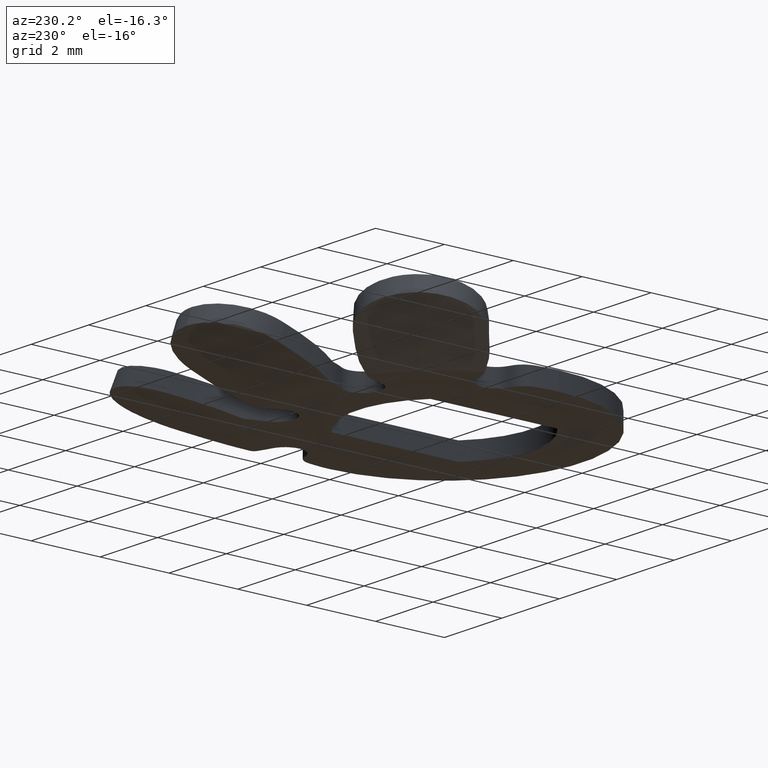
[diagram: clean part render]
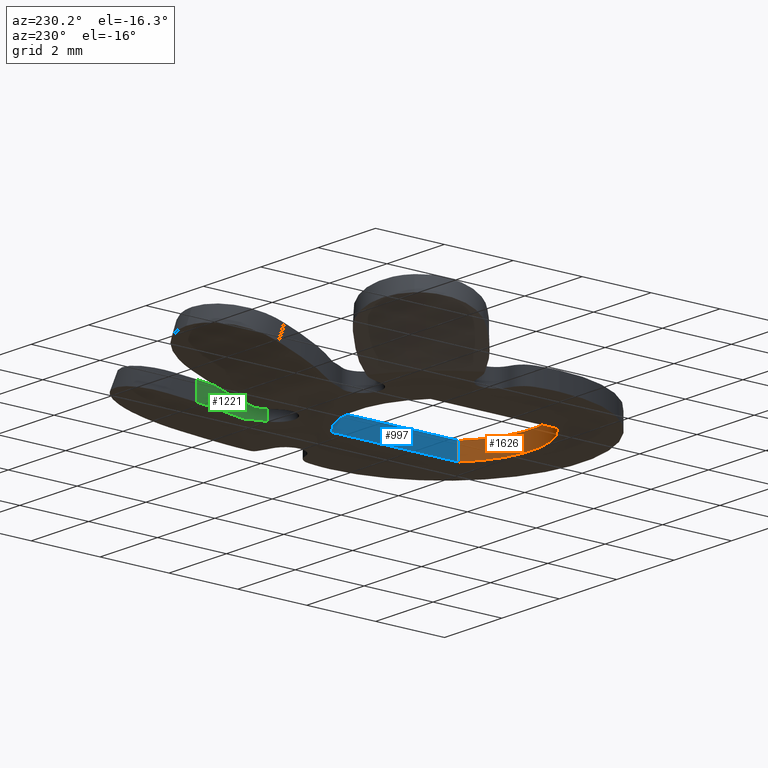
[diagram: same view with three faces highlighted in distinct colors, each labeled with its STEP entity id]
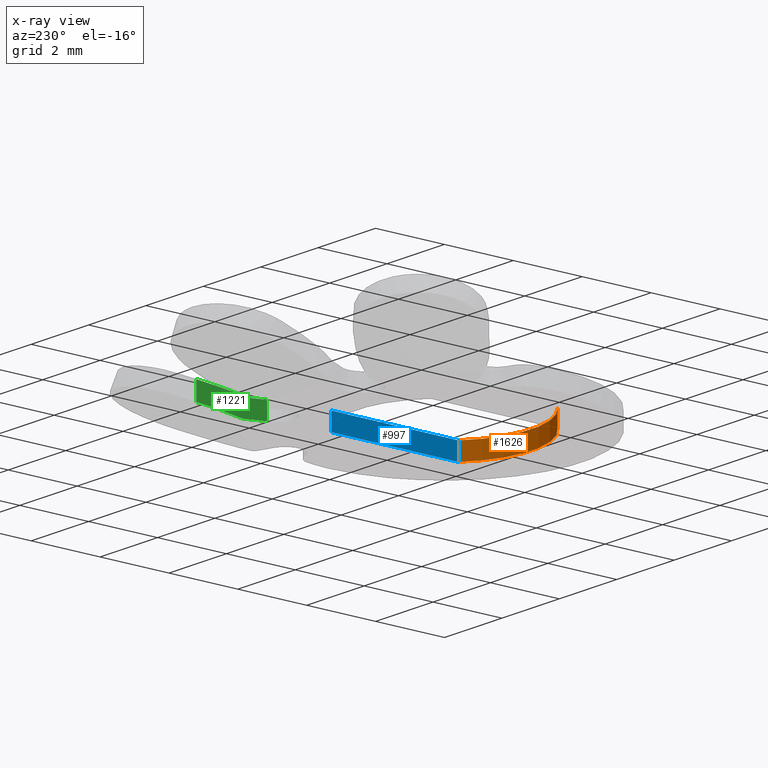
[diagram: x-ray of the same camera — body ghosted, the three highlighted faces saturated]
A machine part, auxiliary view with three faces highlighted in distinct colors.
The next image is the same camera in x-ray (body ghosted, the three faces saturated) — at least one of them is partly hidden behind the body in this view.
Their STEP definitions:

[orange] entity #1626 — the highlighted cylindrical surface (partial cylindrical patch) has radius 2.525 mm, axis along (0, 0, -1).
#63 = DIRECTION ( 'NONE',  ( -1.000000000000000000, 0.0000000000000000000, 0.0000000000000000000 ) ) ;
#119 = DIRECTION ( 'NONE',  ( 0.0000000000000000000, 0.0000000000000000000, 1.000000000000000000 ) ) ;
#206 = CARTESIAN_POINT ( 'NONE',  ( -1.725000000000000100, -1.843908891458577300, 0.5000000000000002200 ) ) ;
#223 = VERTEX_POINT ( 'NONE', #244 ) ;
#244 = CARTESIAN_POINT ( 'NONE',  ( -1.725000000000000100, -1.843908891458577300, 0.0000000000000000000 ) ) ;
#299 = CARTESIAN_POINT ( 'NONE',  ( 1.725000000000000300, -1.843908891458576800, 0.0000000000000000000 ) ) ;
#306 = CARTESIAN_POINT ( 'NONE',  ( 1.725000000000000300, -1.843908891458576800, 1.500000000000000000 ) ) ;
#346 = CARTESIAN_POINT ( 'NONE',  ( -5.401456761889874900E-019, 0.0000000000000000000, 0.5000000000000002200 ) ) ;
#369 = LINE ( 'NONE', #1415, #939 ) ;
#496 = DIRECTION ( 'NONE',  ( -1.000000000000000000, 0.0000000000000000000, 0.0000000000000000000 ) ) ;
#544 = CIRCLE ( 'NONE', #1210, 2.524999999999999900 ) ;
#550 = AXIS2_PLACEMENT_3D ( 'NONE', #346, #1282, #496 ) ;
#676 = VERTEX_POINT ( 'NONE', #206 ) ;
#798 = ORIENTED_EDGE ( 'NONE', *, *, #1213, .F. ) ;
#810 = ORIENTED_EDGE ( 'NONE', *, *, #862, .T. ) ;
#852 = VECTOR ( 'NONE', #1261, 1000.000000000000000 ) ;
#858 = CYLINDRICAL_SURFACE ( 'NONE', #1351, 2.524999999999999900 ) ;
#862 = EDGE_CURVE ( 'NONE', #1132, #1377, #1243, .T. ) ;
#914 = CARTESIAN_POINT ( 'NONE',  ( -5.401456761889874900E-019, 0.0000000000000000000, 0.0000000000000000000 ) ) ;
#939 = VECTOR ( 'NONE', #1550, 1000.000000000000000 ) ;
#957 = CARTESIAN_POINT ( 'NONE',  ( 1.725000000000000300, -1.843908891458576800, 0.5000000000000002200 ) ) ;
#962 = ORIENTED_EDGE ( 'NONE', *, *, #1175, .F. ) ;
#999 = CARTESIAN_POINT ( 'NONE',  ( -5.401456761889874900E-019, 0.0000000000000000000, 1.500000000000000000 ) ) ;
#1054 = DIRECTION ( 'NONE',  ( 1.000000000000000000, 0.0000000000000000000, 0.0000000000000000000 ) ) ;
#1099 = ORIENTED_EDGE ( 'NONE', *, *, #1479, .T. ) ;
#1132 = VERTEX_POINT ( 'NONE', #957 ) ;
#1175 = EDGE_CURVE ( 'NONE', #676, #223, #369, .T. ) ;
#1210 = AXIS2_PLACEMENT_3D ( 'NONE', #914, #119, #1054 ) ;
#1213 = EDGE_CURVE ( 'NONE', #223, #1377, #544, .T. ) ;
#1243 = LINE ( 'NONE', #306, #852 ) ;
#1261 = DIRECTION ( 'NONE',  ( 0.0000000000000000000, 0.0000000000000000000, -1.000000000000000000 ) ) ;
#1265 = DIRECTION ( 'NONE',  ( 0.0000000000000000000, 0.0000000000000000000, -1.000000000000000000 ) ) ;
#1282 = DIRECTION ( 'NONE',  ( -0.0000000000000000000, -0.0000000000000000000, 1.000000000000000000 ) ) ;
#1351 = AXIS2_PLACEMENT_3D ( 'NONE', #999, #1265, #63 ) ;
#1377 = VERTEX_POINT ( 'NONE', #299 ) ;
#1415 = CARTESIAN_POINT ( 'NONE',  ( -1.725000000000000100, -1.843908891458577300, 1.500000000000000000 ) ) ;
#1479 = EDGE_CURVE ( 'NONE', #676, #1132, #1620, .T. ) ;
#1545 = EDGE_LOOP ( 'NONE', ( #1099, #810, #798, #962 ) ) ;
#1550 = DIRECTION ( 'NONE',  ( 0.0000000000000000000, 0.0000000000000000000, -1.000000000000000000 ) ) ;
#1602 = FACE_OUTER_BOUND ( 'NONE', #1545, .T. ) ;
#1620 = CIRCLE ( 'NONE', #550, 2.524999999999999900 ) ;
#1626 = ADVANCED_FACE ( 'NONE', ( #1602 ), #858, .F. ) ;

[blue] entity #997 — the highlighted planar face has unit normal (-1, 0, 0).
#1 = CARTESIAN_POINT ( 'NONE',  ( 1.724999999999999900, 1.843908891458577100, 0.5000000000000002200 ) ) ;
#47 = EDGE_CURVE ( 'NONE', #1132, #1046, #947, .T. ) ;
#48 = AXIS2_PLACEMENT_3D ( 'NONE', #196, #547, #1476 ) ;
#51 = EDGE_CURVE ( 'NONE', #1046, #951, #148, .T. ) ;
#131 = ORIENTED_EDGE ( 'NONE', *, *, #47, .T. ) ;
#148 = LINE ( 'NONE', #882, #1537 ) ;
#196 = CARTESIAN_POINT ( 'NONE',  ( 1.725000000000000100, -1.843908891458577300, 1.500000000000000000 ) ) ;
#198 = DIRECTION ( 'NONE',  ( 0.0000000000000000000, 0.0000000000000000000, -1.000000000000000000 ) ) ;
#260 = EDGE_CURVE ( 'NONE', #1377, #951, #1725, .T. ) ;
#275 = CARTESIAN_POINT ( 'NONE',  ( 1.725000000000000100, -1.843908891458577300, 0.0000000000000000000 ) ) ;
#299 = CARTESIAN_POINT ( 'NONE',  ( 1.725000000000000300, -1.843908891458576800, 0.0000000000000000000 ) ) ;
#306 = CARTESIAN_POINT ( 'NONE',  ( 1.725000000000000300, -1.843908891458576800, 1.500000000000000000 ) ) ;
#417 = ORIENTED_EDGE ( 'NONE', *, *, #51, .T. ) ;
#443 = FACE_OUTER_BOUND ( 'NONE', #1078, .T. ) ;
#464 = ORIENTED_EDGE ( 'NONE', *, *, #260, .F. ) ;
#546 = CARTESIAN_POINT ( 'NONE',  ( 1.724999999999999900, 1.843908891458577100, 0.0000000000000000000 ) ) ;
#547 = DIRECTION ( 'NONE',  ( -1.000000000000000000, 0.0000000000000000000, 0.0000000000000000000 ) ) ;
#852 = VECTOR ( 'NONE', #1261, 1000.000000000000000 ) ;
#862 = EDGE_CURVE ( 'NONE', #1132, #1377, #1243, .T. ) ;
#882 = CARTESIAN_POINT ( 'NONE',  ( 1.724999999999999900, 1.843908891458577100, 1.500000000000000000 ) ) ;
#920 = VECTOR ( 'NONE', #1287, 1000.000000000000000 ) ;
#947 = LINE ( 'NONE', #1014, #920 ) ;
#951 = VERTEX_POINT ( 'NONE', #546 ) ;
#957 = CARTESIAN_POINT ( 'NONE',  ( 1.725000000000000300, -1.843908891458576800, 0.5000000000000002200 ) ) ;
#997 = ADVANCED_FACE ( 'NONE', ( #443 ), #1605, .T. ) ;
#1014 = CARTESIAN_POINT ( 'NONE',  ( 1.725000000000000100, 4.500000000000000900, 0.5000000000000002200 ) ) ;
#1019 = ORIENTED_EDGE ( 'NONE', *, *, #862, .F. ) ;
#1046 = VERTEX_POINT ( 'NONE', #1 ) ;
#1078 = EDGE_LOOP ( 'NONE', ( #131, #417, #464, #1019 ) ) ;
#1132 = VERTEX_POINT ( 'NONE', #957 ) ;
#1243 = LINE ( 'NONE', #306, #852 ) ;
#1261 = DIRECTION ( 'NONE',  ( 0.0000000000000000000, 0.0000000000000000000, -1.000000000000000000 ) ) ;
#1287 = DIRECTION ( 'NONE',  ( 0.0000000000000000000, 1.000000000000000000, 0.0000000000000000000 ) ) ;
#1346 = DIRECTION ( 'NONE',  ( 0.0000000000000000000, 1.000000000000000000, 0.0000000000000000000 ) ) ;
#1377 = VERTEX_POINT ( 'NONE', #299 ) ;
#1476 = DIRECTION ( 'NONE',  ( 0.0000000000000000000, 0.0000000000000000000, 1.000000000000000000 ) ) ;
#1537 = VECTOR ( 'NONE', #198, 1000.000000000000000 ) ;
#1605 = PLANE ( 'NONE',  #48 ) ;
#1683 = VECTOR ( 'NONE', #1346, 1000.000000000000000 ) ;
#1725 = LINE ( 'NONE', #275, #1683 ) ;

[green] entity #1221 — the highlighted cylindrical surface (partial cylindrical patch) has radius 3 mm, axis along (0, 0, -1).
#14 = CARTESIAN_POINT ( 'NONE',  ( 2.209763858464371300, 4.110318900961634500, 0.02859547920896821400 ) ) ;
#21 = CARTESIAN_POINT ( 'NONE',  ( 1.985153603136833300, 3.500382419965138300, 0.0000000000000000000 ) ) ;
#50 = VERTEX_POINT ( 'NONE', #353 ) ;
#55 = CARTESIAN_POINT ( 'NONE',  ( 2.139618078849467000, 3.958792047665616200, 0.5000000000000004400 ) ) ;
#64 = CARTESIAN_POINT ( 'NONE',  ( 2.354684970506663700, 4.401808656235288300, 0.1436284149278990500 ) ) ;
#96 = EDGE_CURVE ( 'NONE', #1181, #405, #600, .T. ) ;
#122 = DIRECTION ( 'NONE',  ( 0.0000000000000000000, 0.0000000000000000000, -1.000000000000000000 ) ) ;
#154 = VECTOR ( 'NONE', #302, 1000.000000000000000 ) ;
#156 = VERTEX_POINT ( 'NONE', #14 ) ;
#180 = CARTESIAN_POINT ( 'NONE',  ( 2.139618078849468300, 3.958792047665618900, 0.0000000000000000000 ) ) ;
#192 = CARTESIAN_POINT ( 'NONE',  ( 2.209763858464371300, 4.110318900961634500, 0.02859547920896821400 ) ) ;
#197 = DIRECTION ( 'NONE',  ( 1.000000000000000000, 0.0000000000000000000, 0.0000000000000000000 ) ) ;
#255 = CIRCLE ( 'NONE', #1290, 3.000000000000000900 ) ;
#302 = DIRECTION ( 'NONE',  ( 0.0000000000000000000, 0.0000000000000000000, 1.000000000000000000 ) ) ;
#305 = EDGE_CURVE ( 'NONE', #873, #345, #255, .T. ) ;
#345 = VERTEX_POINT ( 'NONE', #1556 ) ;
#353 = CARTESIAN_POINT ( 'NONE',  ( 2.774754878398197000, 4.896075221957824300, 0.8986961879248985800 ) ) ;
#376 = DIRECTION ( 'NONE',  ( -1.000000000000000000, 8.818177669548768900E-015, 0.0000000000000000000 ) ) ;
#405 = VERTEX_POINT ( 'NONE', #1147 ) ;
#416 = EDGE_CURVE ( 'NONE', #1706, #50, #1194, .T. ) ;
#455 = ORIENTED_EDGE ( 'NONE', *, *, #703, .T. ) ;
#463 = CARTESIAN_POINT ( 'NONE',  ( 2.185705285308363200, 4.061928245503294100, 0.009498687441757651700 ) ) ;
#473 = CARTESIAN_POINT ( 'NONE',  ( 2.774754878398197500, 4.896075221957824300, 0.3683661020349869900 ) ) ;
#515 = ORIENTED_EDGE ( 'NONE', *, *, #96, .F. ) ;
#525 = DIRECTION ( 'NONE',  ( 0.0000000000000000000, 0.0000000000000000000, -1.000000000000000000 ) ) ;
#595 = CARTESIAN_POINT ( 'NONE',  ( 2.774754878398197000, 4.896075221957824300, 0.8986961879248985800 ) ) ;
#600 = CIRCLE ( 'NONE', #804, 3.000000000000000000 ) ;
#603 = EDGE_LOOP ( 'NONE', ( #1732, #455, #1050, #634, #515, #1209, #935 ) ) ;
#634 = ORIENTED_EDGE ( 'NONE', *, *, #1241, .F. ) ;
#703 = EDGE_CURVE ( 'NONE', #156, #345, #1590, .T. ) ;
#804 = AXIS2_PLACEMENT_3D ( 'NONE', #1185, #1170, #376 ) ;
#850 = CARTESIAN_POINT ( 'NONE',  ( 2.162238349596851400, 4.011452393555981800, 2.093798895943514300E-017 ) ) ;
#857 = CYLINDRICAL_SURFACE ( 'NONE', #1478, 3.000000000000000000 ) ;
#860 = CARTESIAN_POINT ( 'NONE',  ( 2.290991187051315300, 4.311191023143433800, 0.6350538518699900800 ) ) ;
#866 = CARTESIAN_POINT ( 'NONE',  ( 4.896075221957835800, 2.774754878398176100, 0.0000000000000000000 ) ) ;
#873 = VERTEX_POINT ( 'NONE', #21 ) ;
#909 = FACE_OUTER_BOUND ( 'NONE', #603, .T. ) ;
#935 = ORIENTED_EDGE ( 'NONE', *, *, #416, .F. ) ;
#968 = B_SPLINE_CURVE_WITH_KNOTS ( 'NONE', 3,
 ( #595, #1389, #860, #55 ),
 .UNSPECIFIED., .F., .F.,
 ( 4, 4 ),
 ( 1.022834283856302800E-018, 0.001200357094042486700 ),
 .UNSPECIFIED. ) ;
#1031 = CARTESIAN_POINT ( 'NONE',  ( 2.139618078849467000, 3.958792047665616200, 0.5000000000000004400 ) ) ;
#1050 = ORIENTED_EDGE ( 'NONE', *, *, #305, .F. ) ;
#1110 = B_SPLINE_CURVE_WITH_KNOTS ( 'NONE', 3,
 ( #192, #64, #1267, #473 ),
 .UNSPECIFIED., .F., .F.,
 ( 4, 4 ),
 ( 8.486621797141177700E-005, 0.001110488541138487700 ),
 .UNSPECIFIED. ) ;
#1138 = DIRECTION ( 'NONE',  ( 0.0000000000000000000, 0.0000000000000000000, -1.000000000000000000 ) ) ;
#1147 = CARTESIAN_POINT ( 'NONE',  ( 1.985153603136833300, 3.500382419965138300, 0.5000000000000002200 ) ) ;
#1167 = CARTESIAN_POINT ( 'NONE',  ( 2.774754878398197500, 4.896075221957824300, 0.3683661020349869900 ) ) ;
#1170 = DIRECTION ( 'NONE',  ( -0.0000000000000000000, -0.0000000000000000000, 1.000000000000000000 ) ) ;
#1181 = VERTEX_POINT ( 'NONE', #1031 ) ;
#1185 = CARTESIAN_POINT ( 'NONE',  ( 4.896075221957835800, 2.774754878398176100, 0.5000000000000002200 ) ) ;
#1194 = LINE ( 'NONE', #1640, #154 ) ;
#1209 = ORIENTED_EDGE ( 'NONE', *, *, #1595, .F. ) ;
#1221 = ADVANCED_FACE ( 'NONE', ( #909 ), #857, .T. ) ;
#1241 = EDGE_CURVE ( 'NONE', #405, #873, #1571, .T. ) ;
#1267 = CARTESIAN_POINT ( 'NONE',  ( 2.542740522608823600, 4.664060866168449900, 0.2565556011867016800 ) ) ;
#1290 = AXIS2_PLACEMENT_3D ( 'NONE', #866, #1138, #197 ) ;
#1335 = VECTOR ( 'NONE', #122, 1000.000000000000000 ) ;
#1389 = CARTESIAN_POINT ( 'NONE',  ( 2.502569923323727500, 4.623890266883354800, 0.7675269934726720600 ) ) ;
#1454 = EDGE_CURVE ( 'NONE', #156, #1706, #1110, .T. ) ;
#1478 = AXIS2_PLACEMENT_3D ( 'NONE', #1576, #525, #1711 ) ;
#1513 = CARTESIAN_POINT ( 'NONE',  ( 2.209763858464371300, 4.110318900961634500, 0.02859547920896821400 ) ) ;
#1556 = CARTESIAN_POINT ( 'NONE',  ( 2.139618078849468300, 3.958792047665618900, 0.0000000000000000000 ) ) ;
#1571 = LINE ( 'NONE', #1579, #1335 ) ;
#1576 = CARTESIAN_POINT ( 'NONE',  ( 4.896075221957835800, 2.774754878398176100, 1.584853354659089900 ) ) ;
#1579 = CARTESIAN_POINT ( 'NONE',  ( 1.985153603136833300, 3.500382419965138300, 1.584853354659089900 ) ) ;
#1590 = B_SPLINE_CURVE_WITH_KNOTS ( 'NONE', 3,
 ( #1513, #463, #850, #180 ),
 .UNSPECIFIED., .F., .F.,
 ( 4, 4 ),
 ( 9.850144650441417500E-019, 0.0001694063726627943200 ),
 .UNSPECIFIED. ) ;
#1595 = EDGE_CURVE ( 'NONE', #50, #1181, #968, .T. ) ;
#1640 = CARTESIAN_POINT ( 'NONE',  ( 2.774754878398196600, 4.896075221957823400, 0.5000000000000002200 ) ) ;
#1706 = VERTEX_POINT ( 'NONE', #1167 ) ;
#1711 = DIRECTION ( 'NONE',  ( -1.000000000000000000, 0.0000000000000000000, 0.0000000000000000000 ) ) ;
#1732 = ORIENTED_EDGE ( 'NONE', *, *, #1454, .F. ) ;